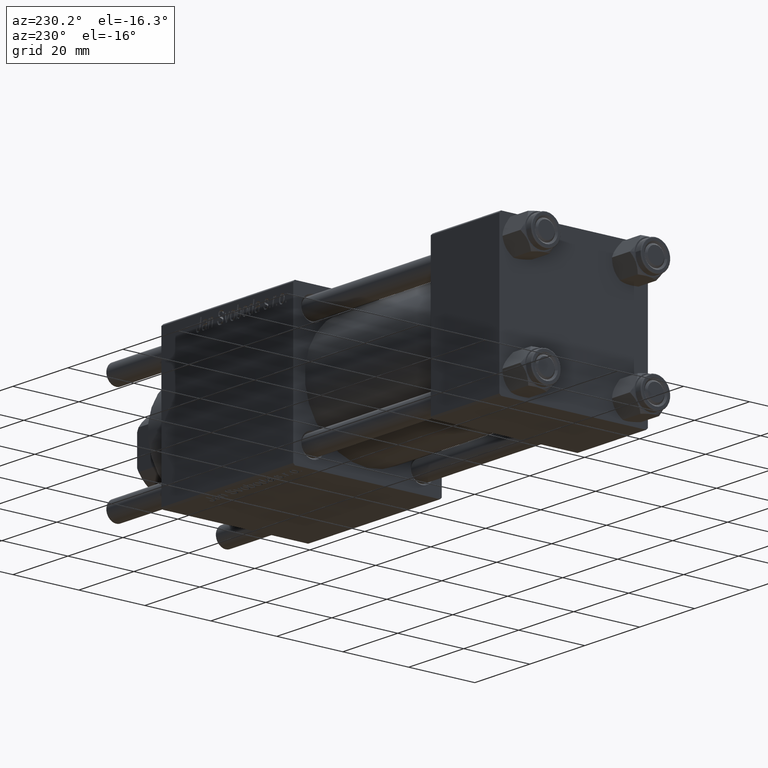
[diagram: clean part render]
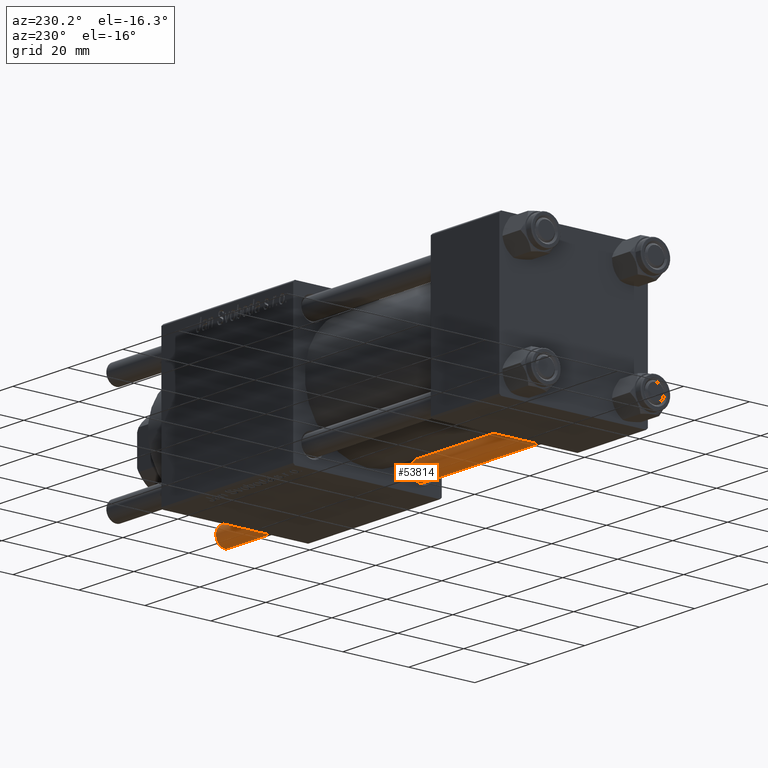
[diagram: same view with one face highlighted and labeled with its STEP entity id]
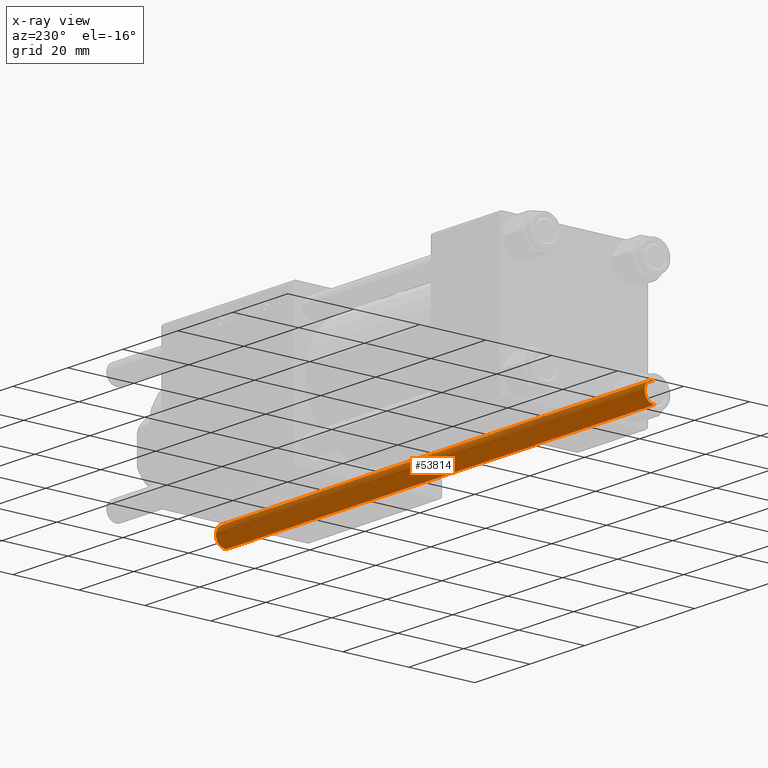
[diagram: x-ray of the same camera — body ghosted, the highlighted face saturated]
A machine part, auxiliary view. The second image highlights one B-rep face of the part: STEP entity #53814.
The next image is the same camera in x-ray: the body ghosted, the highlighted face saturated — about 24% of this face is hidden behind the body in this view.
In plain terms, the highlighted cylindrical surface (edge-blend (fillet) strip) has radius 3 mm, axis along (1, 0, 0).
Its self-contained STEP definition (entity closure, byte-faithful):
#451 = CARTESIAN_POINT ( 'NONE',  ( -3.000000000000000444, 0.000000000000000000, 157.0000000000000000 ) ) ;
#3691 = CARTESIAN_POINT ( 'NONE',  ( -3.000000000000000444, 0.000000000000000000, 156.5000000000000284 ) ) ;
#4751 = EDGE_LOOP ( 'NONE', ( #41870, #7663, #8771, #52776 ) ) ;
#7663 = ORIENTED_EDGE ( 'NONE', *, *, #20244, .T. ) ;
#8456 = DIRECTION ( 'NONE',  ( -0.000000000000000000, -0.000000000000000000, -1.000000000000000000 ) ) ;
#8771 = ORIENTED_EDGE ( 'NONE', *, *, #54583, .T. ) ;
#10743 = VERTEX_POINT ( 'NONE', #3691 ) ;
#14692 = AXIS2_PLACEMENT_3D ( 'NONE', #21987, #22270, #17390 ) ;
#15134 = DIRECTION ( 'NONE',  ( -0.000000000000000000, -0.000000000000000000, -1.000000000000000000 ) ) ;
#17238 = CARTESIAN_POINT ( 'NONE',  ( -3.000000000000000444, 0.000000000000000000, 0.4999999999999726885 ) ) ;
#17241 = EDGE_CURVE ( 'NONE', #17700, #27388, #24042, .T. ) ;
#17390 = DIRECTION ( 'NONE',  ( 1.000000000000000000, 0.000000000000000000, 0.000000000000000000 ) ) ;
#17700 = VERTEX_POINT ( 'NONE', #25261 ) ;
#20244 = EDGE_CURVE ( 'NONE', #17700, #10743, #43884, .T. ) ;
#20668 = VECTOR ( 'NONE', #49027, 1000.000000000000000 ) ;
#21987 = CARTESIAN_POINT ( 'NONE',  ( 0.000000000000000000, 0.000000000000000000, 0.4999999999999726885 ) ) ;
#22270 = DIRECTION ( 'NONE',  ( -0.000000000000000000, -0.000000000000000000, 1.000000000000000000 ) ) ;
#22891 = LINE ( 'NONE', #451, #20668 ) ;
#24042 = LINE ( 'NONE', #51343, #31114 ) ;
#25261 = CARTESIAN_POINT ( 'NONE',  ( 3.000000000000000444, 3.673940397442060361E-16, 156.5000000000000284 ) ) ;
#26822 = EDGE_CURVE ( 'NONE', #42726, #27388, #39464, .T. ) ;
#27388 = VERTEX_POINT ( 'NONE', #43663 ) ;
#31114 = VECTOR ( 'NONE', #15134, 1000.000000000000000 ) ;
#31713 = DIRECTION ( 'NONE',  ( 1.000000000000000000, 0.000000000000000000, 0.000000000000000000 ) ) ;
#34373 = AXIS2_PLACEMENT_3D ( 'NONE', #56466, #8456, #43515 ) ;
#36312 = CARTESIAN_POINT ( 'NONE',  ( 0.000000000000000000, 0.000000000000000000, 156.5000000000000284 ) ) ;
#39464 = CIRCLE ( 'NONE', #14692, 3.000000000000000444 ) ;
#41870 = ORIENTED_EDGE ( 'NONE', *, *, #17241, .F. ) ;
#42726 = VERTEX_POINT ( 'NONE', #17238 ) ;
#43515 = DIRECTION ( 'NONE',  ( -1.000000000000000000, 0.000000000000000000, 0.000000000000000000 ) ) ;
#43663 = CARTESIAN_POINT ( 'NONE',  ( 3.000000000000000444, 3.673940397442060361E-16, 0.4999999999999726885 ) ) ;
#43807 = FACE_OUTER_BOUND ( 'NONE', #4751, .T. ) ;
#43884 = CIRCLE ( 'NONE', #48496, 3.000000000000000444 ) ;
#48496 = AXIS2_PLACEMENT_3D ( 'NONE', #36312, #48677, #31713 ) ;
#48677 = DIRECTION ( 'NONE',  ( 0.000000000000000000, 0.000000000000000000, -1.000000000000000000 ) ) ;
#49027 = DIRECTION ( 'NONE',  ( -0.000000000000000000, -0.000000000000000000, -1.000000000000000000 ) ) ;
#51343 = CARTESIAN_POINT ( 'NONE',  ( 3.000000000000000444, 3.673940397442060361E-16, 157.0000000000000000 ) ) ;
#52737 = CYLINDRICAL_SURFACE ( 'NONE', #34373, 3.000000000000000444 ) ;
#52776 = ORIENTED_EDGE ( 'NONE', *, *, #26822, .T. ) ;
#53814 = ADVANCED_FACE ( 'NONE', ( #43807 ), #52737, .T. ) ;
#54583 = EDGE_CURVE ( 'NONE', #10743, #42726, #22891, .T. ) ;
#56466 = CARTESIAN_POINT ( 'NONE',  ( 0.000000000000000000, 0.000000000000000000, 157.0000000000000000 ) ) ;